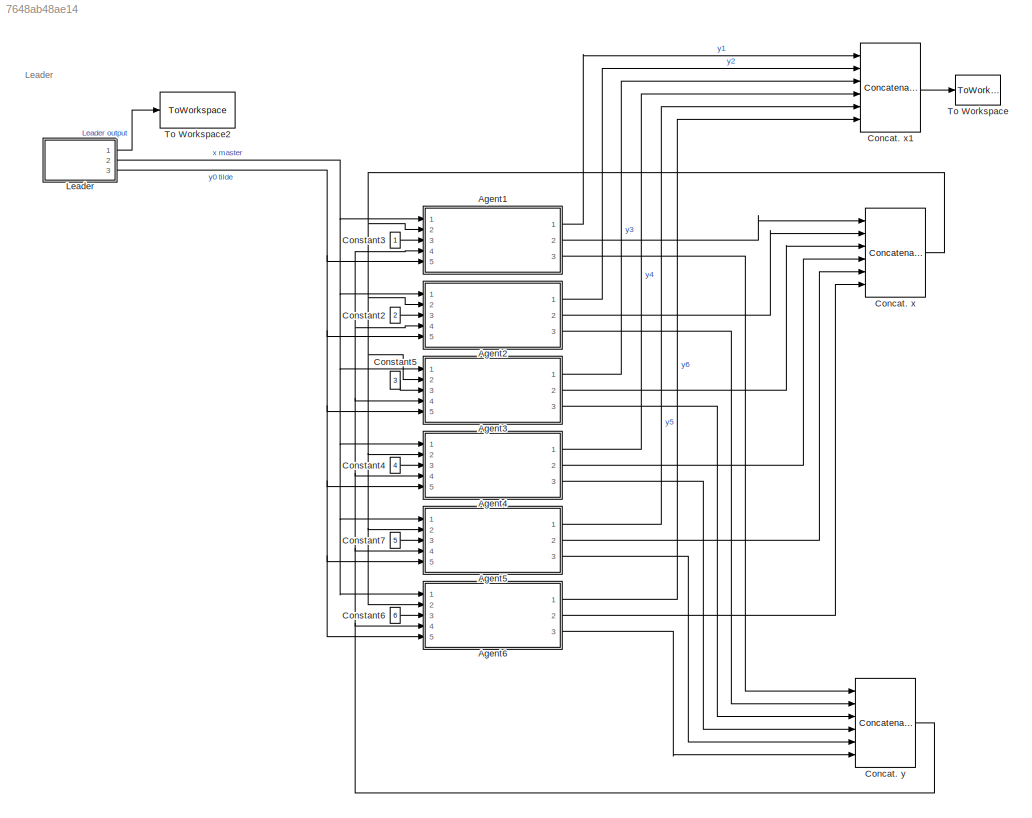
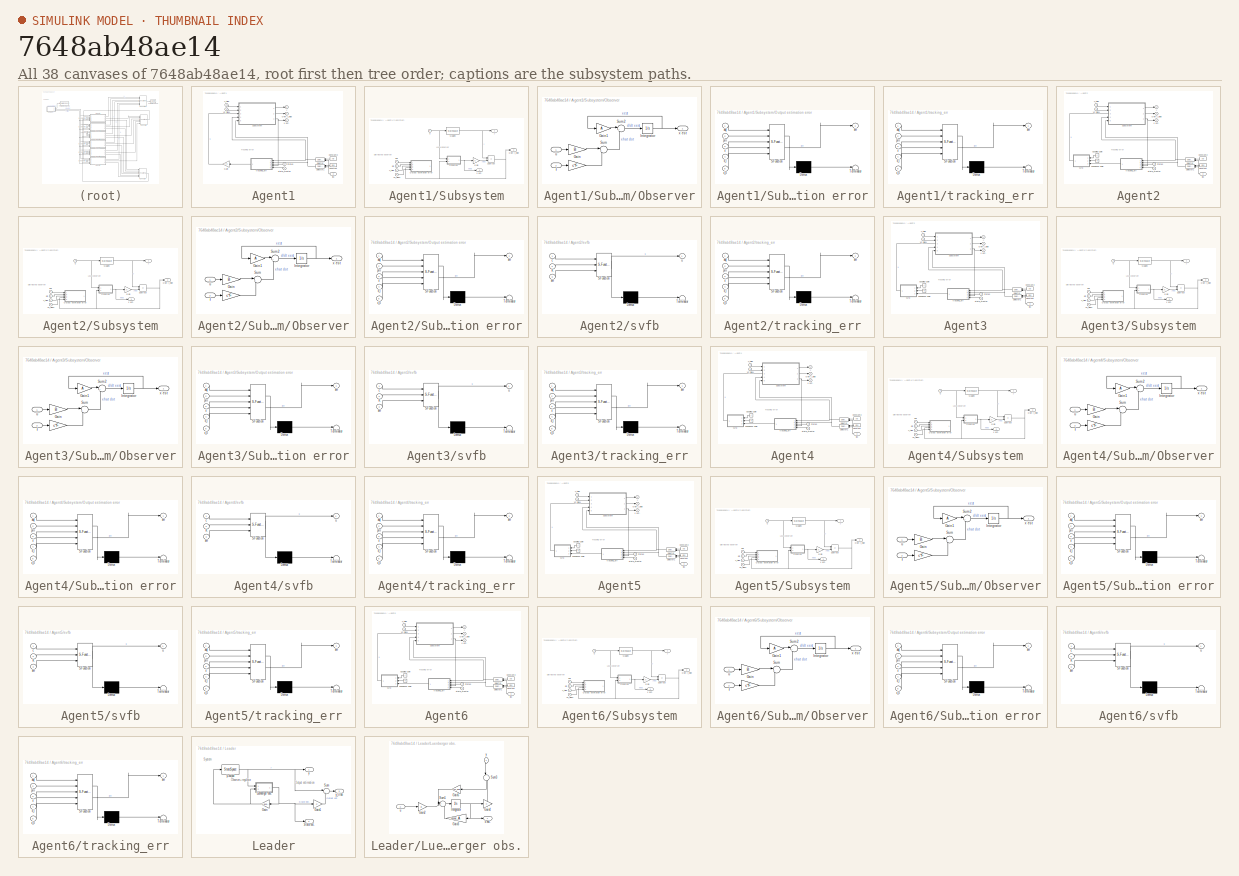
[diagram: thumbnail index - all 38 canvases of the model, root first then tree order]
MODEL slx_7648ab48ae14
KIND model
CONFIG AbsTol = auto
CONFIG EnableMultiTasking = off
CONFIG FixedStep = auto
CONFIG MaxStep = auto
CONFIG MinStep = auto
CONFIG RelTol = 1e-3
CONFIG SampleTimeConstraint = Unconstrained
CONFIG SolverName = VariableStepAuto
CONFIG StartTime = 0.0
CONFIG StopTime = 20
BLOCK [SubSystem] Agent1
  Ports = [5, 3]
  RequestExecContextInheritance = off
BLOCK [Constant] Agent1/Constant
  NameLocation = top
  Value = pins
BLOCK [Constant] Agent1/Constant2
  NameLocation = top
  Value = Adj
  VectorParams1D = off
BLOCK [Gain] Agent1/Gain
  Gain = c*K
  Multiplication = Matrix(K*u)
  NameLocation = top
BLOCK [Outport] Agent1/Own y_tilde
  NameLocation = right
  Port = 3
  PortDimensions = 1
BLOCK [Selector] Agent1/Selector
  IndexOptions = Select all,Index vector (port)
  Indices = [1 3],1
  InputPortWidth = [6 6]
  NameLocation = top
  NumberOfDimensions = 2
  OutputSizes = 1,1
  Ports = [2, 1]
BLOCK [Selector] Agent1/Selector1
  IndexOptions = Index vector (port)
  Indices = [1 3]
  InputPortWidth = 6
  NameLocation = top
  OutputSizes = 1
  Ports = [2, 1]
BLOCK [Inport] Agent1/State_master
  NameLocation = right
BLOCK [Inport] Agent1/States
  NameLocation = right
  Port = 2
BLOCK [SubSystem] Agent1/Subsystem
  Ports = [5, 3]
  RequestExecContextInheritance = off
BLOCK [Gain] Agent1/Subsystem/Gain
  Gain = C
  Multiplication = Matrix(K*u)
BLOCK [StateSpace] Agent1/Subsystem/Maglev
  A = A
  B = B
  C = C
  D = 0
  InitialCondition = 0
  Ports = [1, 1]
BLOCK [SubSystem] Agent1/Subsystem/Observer
  Ports = [2, 1]
  RequestExecContextInheritance = off
BLOCK [Gain] Agent1/Subsystem/Observer/ 
  Gain = c*F
BLOCK [Gain] Agent1/Subsystem/Observer/Gain
  Gain = B
  Multiplication = Matrix(K*u)
BLOCK [Gain] Agent1/Subsystem/Observer/Gain1
  Gain = A
  Multiplication = Matrix(K*u)
BLOCK [Integrator] Agent1/Subsystem/Observer/Integrator
  Ports = [1, 1]
BLOCK [Sum] Agent1/Subsystem/Observer/Sum
  Inputs = |+-
  Ports = [2, 1]
BLOCK [Sum] Agent1/Subsystem/Observer/Sum2
  Inputs = |++
  Ports = [2, 1]
BLOCK [Inport] Agent1/Subsystem/Observer/f
  Port = 2
  PortDimensions = 1
BLOCK [Inport] Agent1/Subsystem/Observer/u
  PortDimensions = 1
BLOCK [Outport] Agent1/Subsystem/Observer/x est
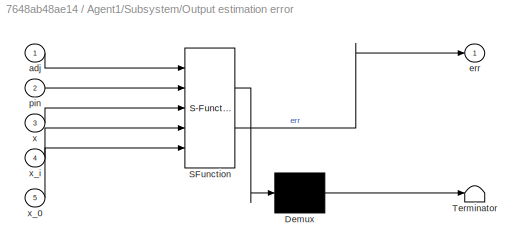
BLOCK [SubSystem] Agent1/Subsystem/Output estimation error
  ErrorFcn = Stateflow.Translate.translate
  PermitHierarchicalResolution = ExplicitOnly
  Ports = [5, 1]
  RequestExecContextInheritance = off
  SFBlockType = MATLAB Function
  TreatAsAtomicUnit = on
BLOCK [Demux] Agent1/Subsystem/Output estimation error/ Demux 
  Outputs = 1
  Ports = [1, 1]
BLOCK [S-Function] Agent1/Subsystem/Output estimation error/ SFunction 
  EnableBusSupport = on
  FunctionName = sf_sfun
  PortCounts = [5 2]
  Ports = [5, 2]
  SFcnIsStateOwnerBlock = off
  SFunctionDeploymentMode = off
  Tag = Stateflow S-Function 1
BLOCK [Terminator] Agent1/Subsystem/Output estimation error/ Terminator 
BLOCK [Inport] Agent1/Subsystem/Output estimation error/adj
BLOCK [Outport] Agent1/Subsystem/Output estimation error/err
BLOCK [Inport] Agent1/Subsystem/Output estimation error/pin
  Port = 2
BLOCK [Inport] Agent1/Subsystem/Output estimation error/x
  Port = 3
BLOCK [Inport] Agent1/Subsystem/Output estimation error/x_0
  Port = 5
BLOCK [Inport] Agent1/Subsystem/Output estimation error/x_i
  Port = 4
BLOCK [Outport] Agent1/Subsystem/Own y_tilde
  NameLocation = right
  Port = 2
  PortDimensions = 1
BLOCK [Sum] Agent1/Subsystem/Subtract
  IconShape = rectangular
  Inputs = +-
  Ports = [2, 1]
BLOCK [Inport] Agent1/Subsystem/Y0_tilde1
  NameLocation = left
  Port = 2
BLOCK [Inport] Agent1/Subsystem/Y_tilde
  NameLocation = left
BLOCK [Inport] Agent1/Subsystem/adj
  NameLocation = left
  Port = 4
BLOCK [Inport] Agent1/Subsystem/pin
  NameLocation = left
  Port = 5
BLOCK [Inport] Agent1/Subsystem/u
  NameLocation = top
  Port = 3
BLOCK [Outport] Agent1/Subsystem/x est.
  NameLocation = right
  Port = 3
  PortDimensions = 2
BLOCK [Outport] Agent1/Subsystem/y
  NameLocation = right
  PortDimensions = 1
BLOCK [Inport] Agent1/Y0_tilde1
  NameLocation = left
  Port = 5
BLOCK [Inport] Agent1/Y_tilde
  NameLocation = left
  Port = 4
BLOCK [Inport] Agent1/idx
  NameLocation = top
  Port = 3
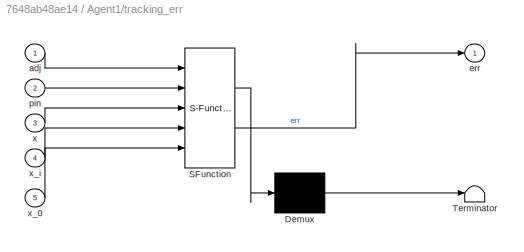
BLOCK [SubSystem] Agent1/tracking_err
  ErrorFcn = Stateflow.Translate.translate
  NameLocation = top
  PermitHierarchicalResolution = ExplicitOnly
  Ports = [5, 1]
  RequestExecContextInheritance = off
  SFBlockType = MATLAB Function
  TreatAsAtomicUnit = on
BLOCK [Demux] Agent1/tracking_err/ Demux 
  Outputs = 1
  Ports = [1, 1]
BLOCK [S-Function] Agent1/tracking_err/ SFunction 
  EnableBusSupport = on
  FunctionName = sf_sfun
  PortCounts = [5 2]
  Ports = [5, 2]
  SFcnIsStateOwnerBlock = off
  SFunctionDeploymentMode = off
  Tag = Stateflow S-Function 5
BLOCK [Terminator] Agent1/tracking_err/ Terminator 
BLOCK [Inport] Agent1/tracking_err/adj
BLOCK [Outport] Agent1/tracking_err/err
BLOCK [Inport] Agent1/tracking_err/pin
  Port = 2
BLOCK [Inport] Agent1/tracking_err/x
  Port = 3
BLOCK [Inport] Agent1/tracking_err/x_0
  Port = 5
BLOCK [Inport] Agent1/tracking_err/x_i
  Port = 4
BLOCK [Outport] Agent1/x est.
  NameLocation = right
  Port = 2
  PortDimensions = 2
BLOCK [Outport] Agent1/y
  NameLocation = right
  PortDimensions = 1
BLOCK [SubSystem] Agent2
  Ports = [5, 3]
  RequestExecContextInheritance = off
BLOCK [Constant] Agent2/Constant
  NameLocation = top
  Value = pins
BLOCK [Constant] Agent2/Constant2
  NameLocation = top
  Value = Adj
  VectorParams1D = off
BLOCK [Constant] Agent2/Coupling gain
  NameLocation = right
  Value = c
BLOCK [Constant] Agent2/Feedback gain
  NameLocation = right
  Value = K
  VectorParams1D = off
BLOCK [Outport] Agent2/Own y_tilde
  NameLocation = right
  Port = 3
  PortDimensions = 1
BLOCK [Selector] Agent2/Selector
  IndexOptions = Select all,Index vector (port)
  Indices = [1 3],1
  InputPortWidth = [6 6]
  NameLocation = top
  NumberOfDimensions = 2
  OutputSizes = 1,1
  Ports = [2, 1]
BLOCK [Selector] Agent2/Selector1
  IndexOptions = Index vector (port)
  Indices = [1 3]
  InputPortWidth = 6
  NameLocation = top
  OutputSizes = 1
  Ports = [2, 1]
BLOCK [Inport] Agent2/State_master
  NameLocation = right
BLOCK [Inport] Agent2/States
  NameLocation = right
  Port = 2
BLOCK [SubSystem] Agent2/Subsystem
  Ports = [5, 3]
  RequestExecContextInheritance = off
BLOCK [Gain] Agent2/Subsystem/Gain
  Gain = C
  Multiplication = Matrix(K*u)
BLOCK [StateSpace] Agent2/Subsystem/Maglev
  A = A
  B = B
  C = C
  D = 0
  InitialCondition = 0
  Ports = [1, 1]
BLOCK [SubSystem] Agent2/Subsystem/Observer
  Ports = [2, 1]
  RequestExecContextInheritance = off
BLOCK [Gain] Agent2/Subsystem/Observer/ 
  Gain = c*F
BLOCK [Gain] Agent2/Subsystem/Observer/Gain
  Gain = B
  Multiplication = Matrix(K*u)
BLOCK [Gain] Agent2/Subsystem/Observer/Gain1
  Gain = A
  Multiplication = Matrix(K*u)
BLOCK [Integrator] Agent2/Subsystem/Observer/Integrator
  Ports = [1, 1]
BLOCK [Sum] Agent2/Subsystem/Observer/Sum
  Inputs = |+-
  Ports = [2, 1]
BLOCK [Sum] Agent2/Subsystem/Observer/Sum2
  Inputs = |++
  Ports = [2, 1]
BLOCK [Inport] Agent2/Subsystem/Observer/f
  Port = 2
  PortDimensions = 1
BLOCK [Inport] Agent2/Subsystem/Observer/u
  PortDimensions = 1
BLOCK [Outport] Agent2/Subsystem/Observer/x est
BLOCK [SubSystem] Agent2/Subsystem/Output estimation error
  ErrorFcn = Stateflow.Translate.translate
  PermitHierarchicalResolution = ExplicitOnly
  Ports = [5, 1]
  RequestExecContextInheritance = off
  SFBlockType = MATLAB Function
  TreatAsAtomicUnit = on
BLOCK [Demux] Agent2/Subsystem/Output estimation error/ Demux 
  Outputs = 1
  Ports = [1, 1]
BLOCK [S-Function] Agent2/Subsystem/Output estimation error/ SFunction 
  EnableBusSupport = on
  FunctionName = sf_sfun
  PortCounts = [5 2]
  Ports = [5, 2]
  SFcnIsStateOwnerBlock = off
  SFunctionDeploymentMode = off
  Tag = Stateflow S-Function 3
BLOCK [Terminator] Agent2/Subsystem/Output estimation error/ Terminator 
BLOCK [Inport] Agent2/Subsystem/Output estimation error/adj
BLOCK [Outport] Agent2/Subsystem/Output estimation error/err
BLOCK [Inport] Agent2/Subsystem/Output estimation error/pin
  Port = 2
BLOCK [Inport] Agent2/Subsystem/Output estimation error/x
  Port = 3
BLOCK [Inport] Agent2/Subsystem/Output estimation error/x_0
  Port = 5
BLOCK [Inport] Agent2/Subsystem/Output estimation error/x_i
  Port = 4
BLOCK [Outport] Agent2/Subsystem/Own y_tilde
  NameLocation = right
  Port = 2
  PortDimensions = 1
BLOCK [Sum] Agent2/Subsystem/Subtract
  IconShape = rectangular
  Inputs = +-
  Ports = [2, 1]
BLOCK [Inport] Agent2/Subsystem/Y0_tilde1
  NameLocation = left
  Port = 2
BLOCK [Inport] Agent2/Subsystem/Y_tilde
  NameLocation = left
BLOCK [Inport] Agent2/Subsystem/adj
  NameLocation = left
  Port = 4
BLOCK [Inport] Agent2/Subsystem/pin
  NameLocation = left
  Port = 5
BLOCK [Inport] Agent2/Subsystem/u
  NameLocation = top
  Port = 3
BLOCK [Outport] Agent2/Subsystem/x est.
  NameLocation = right
  Port = 3
  PortDimensions = 2
BLOCK [Outport] Agent2/Subsystem/y
  NameLocation = right
  PortDimensions = 1
BLOCK [Inport] Agent2/Y0_tilde1
  NameLocation = left
  Port = 5
BLOCK [Inport] Agent2/Y_tilde
  NameLocation = left
  Port = 4
BLOCK [Inport] Agent2/idx
  NameLocation = top
  Port = 3
BLOCK [SubSystem] Agent2/svfb
  ErrorFcn = Stateflow.Translate.translate
  NameLocation = top
  PermitHierarchicalResolution = ExplicitOnly
  Ports = [3, 1]
  RequestExecContextInheritance = off
  SFBlockType = MATLAB Function
  TreatAsAtomicUnit = on
BLOCK [Demux] Agent2/svfb/ Demux 
  Outputs = 1
  Ports = [1, 1]
BLOCK [S-Function] Agent2/svfb/ SFunction 
  EnableBusSupport = on
  FunctionName = sf_sfun
  PortCounts = [3 2]
  Ports = [3, 2]
  SFcnIsStateOwnerBlock = off
  SFunctionDeploymentMode = off
  Tag = Stateflow S-Function 4
BLOCK [Terminator] Agent2/svfb/ Terminator 
BLOCK [Inport] Agent2/svfb/K
  Port = 2
BLOCK [Inport] Agent2/svfb/c
BLOCK [Inport] Agent2/svfb/err
  Port = 3
BLOCK [Outport] Agent2/svfb/u
BLOCK [SubSystem] Agent2/tracking_err
  ErrorFcn = Stateflow.Translate.translate
  NameLocation = top
  PermitHierarchicalResolution = ExplicitOnly
  Ports = [5, 1]
  RequestExecContextInheritance = off
  SFBlockType = MATLAB Function
  TreatAsAtomicUnit = on
BLOCK [Demux] Agent2/tracking_err/ Demux 
  Outputs = 1
  Ports = [1, 1]
BLOCK [S-Function] Agent2/tracking_err/ SFunction 
  EnableBusSupport = on
  FunctionName = sf_sfun
  PortCounts = [5 2]
  Ports = [5, 2]
  SFcnIsStateOwnerBlock = off
  SFunctionDeploymentMode = off
  Tag = Stateflow S-Function 6
BLOCK [Terminator] Agent2/tracking_err/ Terminator 
BLOCK [Inport] Agent2/tracking_err/adj
BLOCK [Outport] Agent2/tracking_err/err
BLOCK [Inport] Agent2/tracking_err/pin
  Port = 2
BLOCK [Inport] Agent2/tracking_err/x
  Port = 3
BLOCK [Inport] Agent2/tracking_err/x_0
  Port = 5
BLOCK [Inport] Agent2/tracking_err/x_i
  Port = 4
BLOCK [Outport] Agent2/x est.
  NameLocation = right
  Port = 2
  PortDimensions = 2
BLOCK [Outport] Agent2/y
  NameLocation = right
  PortDimensions = 1
BLOCK [SubSystem] Agent3
  Ports = [5, 3]
  RequestExecContextInheritance = off
BLOCK [Constant] Agent3/Constant
  NameLocation = top
  Value = pins
BLOCK [Constant] Agent3/Constant2
  NameLocation = top
  Value = Adj
  VectorParams1D = off
BLOCK [Constant] Agent3/Coupling gain
  NameLocation = right
  Value = c
BLOCK [Constant] Agent3/Feedback gain
  NameLocation = right
  Value = K
  VectorParams1D = off
BLOCK [Outport] Agent3/Own y_tilde
  NameLocation = right
  Port = 3
  PortDimensions = 1
BLOCK [Selector] Agent3/Selector
  IndexOptions = Select all,Index vector (port)
  Indices = [1 3],1
  InputPortWidth = [6 6]
  NameLocation = top
  NumberOfDimensions = 2
  OutputSizes = 1,1
  Ports = [2, 1]
BLOCK [Selector] Agent3/Selector1
  IndexOptions = Index vector (port)
  Indices = [1 3]
  InputPortWidth = 6
  NameLocation = top
  OutputSizes = 1
  Ports = [2, 1]
BLOCK [Inport] Agent3/State_master
  NameLocation = right
BLOCK [Inport] Agent3/States
  NameLocation = right
  Port = 2
BLOCK [SubSystem] Agent3/Subsystem
  Ports = [5, 3]
  RequestExecContextInheritance = off
BLOCK [Gain] Agent3/Subsystem/Gain
  Gain = C
  Multiplication = Matrix(K*u)
BLOCK [StateSpace] Agent3/Subsystem/Maglev
  A = A
  B = B
  C = C
  D = 0
  InitialCondition = 0
  Ports = [1, 1]
BLOCK [SubSystem] Agent3/Subsystem/Observer
  Ports = [2, 1]
  RequestExecContextInheritance = off
BLOCK [Gain] Agent3/Subsystem/Observer/ 
  Gain = c*F
BLOCK [Gain] Agent3/Subsystem/Observer/Gain
  Gain = B
  Multiplication = Matrix(K*u)
BLOCK [Gain] Agent3/Subsystem/Observer/Gain1
  Gain = A
  Multiplication = Matrix(K*u)
BLOCK [Integrator] Agent3/Subsystem/Observer/Integrator
  Ports = [1, 1]
BLOCK [Sum] Agent3/Subsystem/Observer/Sum
  Inputs = |+-
  Ports = [2, 1]
BLOCK [Sum] Agent3/Subsystem/Observer/Sum2
  Inputs = |++
  Ports = [2, 1]
BLOCK [Inport] Agent3/Subsystem/Observer/f
  Port = 2
  PortDimensions = 1
BLOCK [Inport] Agent3/Subsystem/Observer/u
  PortDimensions = 1
BLOCK [Outport] Agent3/Subsystem/Observer/x est
BLOCK [SubSystem] Agent3/Subsystem/Output estimation error
  ErrorFcn = Stateflow.Translate.translate
  PermitHierarchicalResolution = ExplicitOnly
  Ports = [5, 1]
  RequestExecContextInheritance = off
  SFBlockType = MATLAB Function
  TreatAsAtomicUnit = on
BLOCK [Demux] Agent3/Subsystem/Output estimation error/ Demux 
  Outputs = 1
  Ports = [1, 1]
BLOCK [S-Function] Agent3/Subsystem/Output estimation error/ SFunction 
  EnableBusSupport = on
  FunctionName = sf_sfun
  PortCounts = [5 2]
  Ports = [5, 2]
  SFcnIsStateOwnerBlock = off
  SFunctionDeploymentMode = off
  Tag = Stateflow S-Function 2
BLOCK [Terminator] Agent3/Subsystem/Output estimation error/ Terminator 
BLOCK [Inport] Agent3/Subsystem/Output estimation error/adj
BLOCK [Outport] Agent3/Subsystem/Output estimation error/err
BLOCK [Inport] Agent3/Subsystem/Output estimation error/pin
  Port = 2
BLOCK [Inport] Agent3/Subsystem/Output estimation error/x
  Port = 3
BLOCK [Inport] Agent3/Subsystem/Output estimation error/x_0
  Port = 5
BLOCK [Inport] Agent3/Subsystem/Output estimation error/x_i
  Port = 4
BLOCK [Outport] Agent3/Subsystem/Own y_tilde
  NameLocation = right
  Port = 2
  PortDimensions = 1
BLOCK [Sum] Agent3/Subsystem/Subtract
  IconShape = rectangular
  Inputs = +-
  Ports = [2, 1]
BLOCK [Inport] Agent3/Subsystem/Y0_tilde1
  NameLocation = left
  Port = 2
BLOCK [Inport] Agent3/Subsystem/Y_tilde
  NameLocation = left
BLOCK [Inport] Agent3/Subsystem/adj
  NameLocation = left
  Port = 4
BLOCK [Inport] Agent3/Subsystem/pin
  NameLocation = left
  Port = 5
BLOCK [Inport] Agent3/Subsystem/u
  NameLocation = top
  Port = 3
BLOCK [Outport] Agent3/Subsystem/x est.
  NameLocation = right
  Port = 3
  PortDimensions = 2
BLOCK [Outport] Agent3/Subsystem/y
  NameLocation = right
  PortDimensions = 1
BLOCK [Inport] Agent3/Y0_tilde1
  NameLocation = left
  Port = 5
BLOCK [Inport] Agent3/Y_tilde
  NameLocation = left
  Port = 4
BLOCK [Inport] Agent3/idx
  NameLocation = top
  Port = 3
BLOCK [SubSystem] Agent3/svfb
  ErrorFcn = Stateflow.Translate.translate
  NameLocation = top
  PermitHierarchicalResolution = ExplicitOnly
  Ports = [3, 1]
  RequestExecContextInheritance = off
  SFBlockType = MATLAB Function
  TreatAsAtomicUnit = on
BLOCK [Demux] Agent3/svfb/ Demux 
  Outputs = 1
  Ports = [1, 1]
BLOCK [S-Function] Agent3/svfb/ SFunction 
  EnableBusSupport = on
  FunctionName = sf_sfun
  PortCounts = [3 2]
  Ports = [3, 2]
  SFcnIsStateOwnerBlock = off
  SFunctionDeploymentMode = off
  Tag = Stateflow S-Function 7
BLOCK [Terminator] Agent3/svfb/ Terminator 
BLOCK [Inport] Agent3/svfb/K
  Port = 2
BLOCK [Inport] Agent3/svfb/c
BLOCK [Inport] Agent3/svfb/err
  Port = 3
BLOCK [Outport] Agent3/svfb/u
BLOCK [SubSystem] Agent3/tracking_err
  ErrorFcn = Stateflow.Translate.translate
  NameLocation = top
  PermitHierarchicalResolution = ExplicitOnly
  Ports = [5, 1]
  RequestExecContextInheritance = off
  SFBlockType = MATLAB Function
  TreatAsAtomicUnit = on
BLOCK [Demux] Agent3/tracking_err/ Demux 
  Outputs = 1
  Ports = [1, 1]
BLOCK [S-Function] Agent3/tracking_err/ SFunction 
  EnableBusSupport = on
  FunctionName = sf_sfun
  PortCounts = [5 2]
  Ports = [5, 2]
  SFcnIsStateOwnerBlock = off
  SFunctionDeploymentMode = off
  Tag = Stateflow S-Function 8
BLOCK [Terminator] Agent3/tracking_err/ Terminator 
BLOCK [Inport] Agent3/tracking_err/adj
BLOCK [Outport] Agent3/tracking_err/err
BLOCK [Inport] Agent3/tracking_err/pin
  Port = 2
BLOCK [Inport] Agent3/tracking_err/x
  Port = 3
BLOCK [Inport] Agent3/tracking_err/x_0
  Port = 5
BLOCK [Inport] Agent3/tracking_err/x_i
  Port = 4
BLOCK [Outport] Agent3/x est.
  NameLocation = right
  Port = 2
  PortDimensions = 2
BLOCK [Outport] Agent3/y
  NameLocation = right
  PortDimensions = 1
BLOCK [SubSystem] Agent4
  Ports = [5, 3]
  RequestExecContextInheritance = off
BLOCK [Constant] Agent4/Constant
  NameLocation = top
  Value = pins
BLOCK [Constant] Agent4/Constant2
  NameLocation = top
  Value = Adj
  VectorParams1D = off
BLOCK [Constant] Agent4/Coupling gain
  NameLocation = right
  Value = c
BLOCK [Constant] Agent4/Feedback gain
  NameLocation = right
  Value = K
  VectorParams1D = off
BLOCK [Outport] Agent4/Own y_tilde
  NameLocation = right
  Port = 3
  PortDimensions = 1
BLOCK [Selector] Agent4/Selector
  IndexOptions = Select all,Index vector (port)
  Indices = [1 3],1
  InputPortWidth = [6 6]
  NameLocation = top
  NumberOfDimensions = 2
  OutputSizes = 1,1
  Ports = [2, 1]
BLOCK [Selector] Agent4/Selector1
  IndexOptions = Index vector (port)
  Indices = [1 3]
  InputPortWidth = 6
  NameLocation = top
  OutputSizes = 1
  Ports = [2, 1]
BLOCK [Inport] Agent4/State_master
  NameLocation = right
BLOCK [Inport] Agent4/States
  NameLocation = right
  Port = 2
BLOCK [SubSystem] Agent4/Subsystem
  Ports = [5, 3]
  RequestExecContextInheritance = off
BLOCK [Gain] Agent4/Subsystem/Gain
  Gain = C
  Multiplication = Matrix(K*u)
BLOCK [StateSpace] Agent4/Subsystem/Maglev
  A = A
  B = B
  C = C
  D = 0
  InitialCondition = 0
  Ports = [1, 1]
BLOCK [SubSystem] Agent4/Subsystem/Observer
  Ports = [2, 1]
  RequestExecContextInheritance = off
BLOCK [Gain] Agent4/Subsystem/Observer/ 
  Gain = c*F
BLOCK [Gain] Agent4/Subsystem/Observer/Gain
  Gain = B
  Multiplication = Matrix(K*u)
BLOCK [Gain] Agent4/Subsystem/Observer/Gain1
  Gain = A
  Multiplication = Matrix(K*u)
BLOCK [Integrator] Agent4/Subsystem/Observer/Integrator
  Ports = [1, 1]
BLOCK [Sum] Agent4/Subsystem/Observer/Sum
  Inputs = |+-
  Ports = [2, 1]
BLOCK [Sum] Agent4/Subsystem/Observer/Sum2
  Inputs = |++
  Ports = [2, 1]
BLOCK [Inport] Agent4/Subsystem/Observer/f
  Port = 2
  PortDimensions = 1
BLOCK [Inport] Agent4/Subsystem/Observer/u
  PortDimensions = 1
BLOCK [Outport] Agent4/Subsystem/Observer/x est
BLOCK [SubSystem] Agent4/Subsystem/Output estimation error
  ErrorFcn = Stateflow.Translate.translate
  PermitHierarchicalResolution = ExplicitOnly
  Ports = [5, 1]
  RequestExecContextInheritance = off
  SFBlockType = MATLAB Function
  TreatAsAtomicUnit = on
BLOCK [Demux] Agent4/Subsystem/Output estimation error/ Demux 
  Outputs = 1
  Ports = [1, 1]
BLOCK [S-Function] Agent4/Subsystem/Output estimation error/ SFunction 
  EnableBusSupport = on
  FunctionName = sf_sfun
  PortCounts = [5 2]
  Ports = [5, 2]
  SFcnIsStateOwnerBlock = off
  SFunctionDeploymentMode = off
  Tag = Stateflow S-Function 9
BLOCK [Terminator] Agent4/Subsystem/Output estimation error/ Terminator 
BLOCK [Inport] Agent4/Subsystem/Output estimation error/adj
BLOCK [Outport] Agent4/Subsystem/Output estimation error/err
BLOCK [Inport] Agent4/Subsystem/Output estimation error/pin
  Port = 2
BLOCK [Inport] Agent4/Subsystem/Output estimation error/x
  Port = 3
BLOCK [Inport] Agent4/Subsystem/Output estimation error/x_0
  Port = 5
BLOCK [Inport] Agent4/Subsystem/Output estimation error/x_i
  Port = 4
BLOCK [Outport] Agent4/Subsystem/Own y_tilde
  NameLocation = right
  Port = 2
  PortDimensions = 1
BLOCK [Sum] Agent4/Subsystem/Subtract
  IconShape = rectangular
  Inputs = +-
  Ports = [2, 1]
BLOCK [Inport] Agent4/Subsystem/Y0_tilde1
  NameLocation = left
  Port = 2
BLOCK [Inport] Agent4/Subsystem/Y_tilde
  NameLocation = left
BLOCK [Inport] Agent4/Subsystem/adj
  NameLocation = left
  Port = 4
BLOCK [Inport] Agent4/Subsystem/pin
  NameLocation = left
  Port = 5
BLOCK [Inport] Agent4/Subsystem/u
  NameLocation = top
  Port = 3
BLOCK [Outport] Agent4/Subsystem/x est.
  NameLocation = right
  Port = 3
  PortDimensions = 2
BLOCK [Outport] Agent4/Subsystem/y
  NameLocation = right
  PortDimensions = 1
BLOCK [Inport] Agent4/Y0_tilde1
  NameLocation = left
  Port = 5
BLOCK [Inport] Agent4/Y_tilde
  NameLocation = left
  Port = 4
BLOCK [Inport] Agent4/idx
  NameLocation = top
  Port = 3
BLOCK [SubSystem] Agent4/svfb
  ErrorFcn = Stateflow.Translate.translate
  NameLocation = top
  PermitHierarchicalResolution = ExplicitOnly
  Ports = [3, 1]
  RequestExecContextInheritance = off
  SFBlockType = MATLAB Function
  TreatAsAtomicUnit = on
BLOCK [Demux] Agent4/svfb/ Demux 
  Outputs = 1
  Ports = [1, 1]
BLOCK [S-Function] Agent4/svfb/ SFunction 
  EnableBusSupport = on
  FunctionName = sf_sfun
  PortCounts = [3 2]
  Ports = [3, 2]
  SFcnIsStateOwnerBlock = off
  SFunctionDeploymentMode = off
  Tag = Stateflow S-Function 10
BLOCK [Terminator] Agent4/svfb/ Terminator 
BLOCK [Inport] Agent4/svfb/K
  Port = 2
BLOCK [Inport] Agent4/svfb/c
BLOCK [Inport] Agent4/svfb/err
  Port = 3
BLOCK [Outport] Agent4/svfb/u
BLOCK [SubSystem] Agent4/tracking_err
  ErrorFcn = Stateflow.Translate.translate
  NameLocation = top
  PermitHierarchicalResolution = ExplicitOnly
  Ports = [5, 1]
  RequestExecContextInheritance = off
  SFBlockType = MATLAB Function
  TreatAsAtomicUnit = on
BLOCK [Demux] Agent4/tracking_err/ Demux 
  Outputs = 1
  Ports = [1, 1]
BLOCK [S-Function] Agent4/tracking_err/ SFunction 
  EnableBusSupport = on
  FunctionName = sf_sfun
  PortCounts = [5 2]
  Ports = [5, 2]
  SFcnIsStateOwnerBlock = off
  SFunctionDeploymentMode = off
  Tag = Stateflow S-Function 11
BLOCK [Terminator] Agent4/tracking_err/ Terminator 
BLOCK [Inport] Agent4/tracking_err/adj
BLOCK [Outport] Agent4/tracking_err/err
BLOCK [Inport] Agent4/tracking_err/pin
  Port = 2
BLOCK [Inport] Agent4/tracking_err/x
  Port = 3
BLOCK [Inport] Agent4/tracking_err/x_0
  Port = 5
BLOCK [Inport] Agent4/tracking_err/x_i
  Port = 4
BLOCK [Outport] Agent4/x est.
  NameLocation = right
  Port = 2
  PortDimensions = 2
BLOCK [Outport] Agent4/y
  NameLocation = right
  PortDimensions = 1
BLOCK [SubSystem] Agent5
  Ports = [5, 3]
  RequestExecContextInheritance = off
BLOCK [Constant] Agent5/Constant
  NameLocation = top
  Value = pins
BLOCK [Constant] Agent5/Constant2
  NameLocation = top
  Value = Adj
  VectorParams1D = off
BLOCK [Constant] Agent5/Coupling gain
  NameLocation = right
  Value = c
BLOCK [Constant] Agent5/Feedback gain
  NameLocation = right
  Value = K
  VectorParams1D = off
BLOCK [Outport] Agent5/Own y_tilde
  NameLocation = right
  Port = 3
  PortDimensions = 1
BLOCK [Selector] Agent5/Selector
  IndexOptions = Select all,Index vector (port)
  Indices = [1 3],1
  InputPortWidth = [6 6]
  NameLocation = top
  NumberOfDimensions = 2
  OutputSizes = 1,1
  Ports = [2, 1]
BLOCK [Selector] Agent5/Selector1
  IndexOptions = Index vector (port)
  Indices = [1 3]
  InputPortWidth = 6
  NameLocation = top
  OutputSizes = 1
  Ports = [2, 1]
BLOCK [Inport] Agent5/State_master
  NameLocation = right
BLOCK [Inport] Agent5/States
  NameLocation = right
  Port = 2
BLOCK [SubSystem] Agent5/Subsystem
  Ports = [5, 3]
  RequestExecContextInheritance = off
BLOCK [Gain] Agent5/Subsystem/Gain
  Gain = C
  Multiplication = Matrix(K*u)
BLOCK [StateSpace] Agent5/Subsystem/Maglev
  A = A
  B = B
  C = C
  D = 0
  InitialCondition = 0
  Ports = [1, 1]
BLOCK [SubSystem] Agent5/Subsystem/Observer
  Ports = [2, 1]
  RequestExecContextInheritance = off
BLOCK [Gain] Agent5/Subsystem/Observer/ 
  Gain = c*F
BLOCK [Gain] Agent5/Subsystem/Observer/Gain
  Gain = B
  Multiplication = Matrix(K*u)
BLOCK [Gain] Agent5/Subsystem/Observer/Gain1
  Gain = A
  Multiplication = Matrix(K*u)
BLOCK [Integrator] Agent5/Subsystem/Observer/Integrator
  Ports = [1, 1]
BLOCK [Sum] Agent5/Subsystem/Observer/Sum
  Inputs = |+-
  Ports = [2, 1]
BLOCK [Sum] Agent5/Subsystem/Observer/Sum2
  Inputs = |++
  Ports = [2, 1]
BLOCK [Inport] Agent5/Subsystem/Observer/f
  Port = 2
  PortDimensions = 1
BLOCK [Inport] Agent5/Subsystem/Observer/u
  PortDimensions = 1
BLOCK [Outport] Agent5/Subsystem/Observer/x est
BLOCK [SubSystem] Agent5/Subsystem/Output estimation error
  ErrorFcn = Stateflow.Translate.translate
  PermitHierarchicalResolution = ExplicitOnly
  Ports = [5, 1]
  RequestExecContextInheritance = off
  SFBlockType = MATLAB Function
  TreatAsAtomicUnit = on
BLOCK [Demux] Agent5/Subsystem/Output estimation error/ Demux 
  Outputs = 1
  Ports = [1, 1]
BLOCK [S-Function] Agent5/Subsystem/Output estimation error/ SFunction 
  EnableBusSupport = on
  FunctionName = sf_sfun
  PortCounts = [5 2]
  Ports = [5, 2]
  SFcnIsStateOwnerBlock = off
  SFunctionDeploymentMode = off
  Tag = Stateflow S-Function 12
BLOCK [Terminator] Agent5/Subsystem/Output estimation error/ Terminator 
BLOCK [Inport] Agent5/Subsystem/Output estimation error/adj
BLOCK [Outport] Agent5/Subsystem/Output estimation error/err
BLOCK [Inport] Agent5/Subsystem/Output estimation error/pin
  Port = 2
BLOCK [Inport] Agent5/Subsystem/Output estimation error/x
  Port = 3
BLOCK [Inport] Agent5/Subsystem/Output estimation error/x_0
  Port = 5
BLOCK [Inport] Agent5/Subsystem/Output estimation error/x_i
  Port = 4
BLOCK [Outport] Agent5/Subsystem/Own y_tilde
  NameLocation = right
  Port = 2
  PortDimensions = 1
BLOCK [Sum] Agent5/Subsystem/Subtract
  IconShape = rectangular
  Inputs = +-
  Ports = [2, 1]
BLOCK [Inport] Agent5/Subsystem/Y0_tilde1
  NameLocation = left
  Port = 2
BLOCK [Inport] Agent5/Subsystem/Y_tilde
  NameLocation = left
BLOCK [Inport] Agent5/Subsystem/adj
  NameLocation = left
  Port = 4
BLOCK [Inport] Agent5/Subsystem/pin
  NameLocation = left
  Port = 5
BLOCK [Inport] Agent5/Subsystem/u
  NameLocation = top
  Port = 3
BLOCK [Outport] Agent5/Subsystem/x est.
  NameLocation = right
  Port = 3
  PortDimensions = 2
BLOCK [Outport] Agent5/Subsystem/y
  NameLocation = right
  PortDimensions = 1
BLOCK [Inport] Agent5/Y0_tilde1
  NameLocation = left
  Port = 5
BLOCK [Inport] Agent5/Y_tilde
  NameLocation = left
  Port = 4
BLOCK [Inport] Agent5/idx
  NameLocation = top
  Port = 3
BLOCK [SubSystem] Agent5/svfb
  ErrorFcn = Stateflow.Translate.translate
  NameLocation = top
  PermitHierarchicalResolution = ExplicitOnly
  Ports = [3, 1]
  RequestExecContextInheritance = off
  SFBlockType = MATLAB Function
  TreatAsAtomicUnit = on
BLOCK [Demux] Agent5/svfb/ Demux 
  Outputs = 1
  Ports = [1, 1]
BLOCK [S-Function] Agent5/svfb/ SFunction 
  EnableBusSupport = on
  FunctionName = sf_sfun
  PortCounts = [3 2]
  Ports = [3, 2]
  SFcnIsStateOwnerBlock = off
  SFunctionDeploymentMode = off
  Tag = Stateflow S-Function 13
BLOCK [Terminator] Agent5/svfb/ Terminator 
BLOCK [Inport] Agent5/svfb/K
  Port = 2
BLOCK [Inport] Agent5/svfb/c
BLOCK [Inport] Agent5/svfb/err
  Port = 3
BLOCK [Outport] Agent5/svfb/u
BLOCK [SubSystem] Agent5/tracking_err
  ErrorFcn = Stateflow.Translate.translate
  NameLocation = top
  PermitHierarchicalResolution = ExplicitOnly
  Ports = [5, 1]
  RequestExecContextInheritance = off
  SFBlockType = MATLAB Function
  TreatAsAtomicUnit = on
BLOCK [Demux] Agent5/tracking_err/ Demux 
  Outputs = 1
  Ports = [1, 1]
BLOCK [S-Function] Agent5/tracking_err/ SFunction 
  EnableBusSupport = on
  FunctionName = sf_sfun
  PortCounts = [5 2]
  Ports = [5, 2]
  SFcnIsStateOwnerBlock = off
  SFunctionDeploymentMode = off
  Tag = Stateflow S-Function 14
BLOCK [Terminator] Agent5/tracking_err/ Terminator 
BLOCK [Inport] Agent5/tracking_err/adj
BLOCK [Outport] Agent5/tracking_err/err
BLOCK [Inport] Agent5/tracking_err/pin
  Port = 2
BLOCK [Inport] Agent5/tracking_err/x
  Port = 3
BLOCK [Inport] Agent5/tracking_err/x_0
  Port = 5
BLOCK [Inport] Agent5/tracking_err/x_i
  Port = 4
BLOCK [Outport] Agent5/x est.
  NameLocation = right
  Port = 2
  PortDimensions = 2
BLOCK [Outport] Agent5/y
  NameLocation = right
  PortDimensions = 1
BLOCK [SubSystem] Agent6
  Ports = [5, 3]
  RequestExecContextInheritance = off
BLOCK [Constant] Agent6/Constant
  NameLocation = top
  Value = pins
BLOCK [Constant] Agent6/Constant2
  NameLocation = top
  Value = Adj
  VectorParams1D = off
BLOCK [Constant] Agent6/Coupling gain
  NameLocation = right
  Value = c
BLOCK [Constant] Agent6/Feedback gain
  NameLocation = right
  Value = K
  VectorParams1D = off
BLOCK [Outport] Agent6/Own y_tilde
  NameLocation = right
  Port = 3
  PortDimensions = 1
BLOCK [Selector] Agent6/Selector
  IndexOptions = Select all,Index vector (port)
  Indices = [1 3],1
  InputPortWidth = [6 6]
  NameLocation = top
  NumberOfDimensions = 2
  OutputSizes = 1,1
  Ports = [2, 1]
BLOCK [Selector] Agent6/Selector1
  IndexOptions = Index vector (port)
  Indices = [1 3]
  InputPortWidth = 6
  NameLocation = top
  OutputSizes = 1
  Ports = [2, 1]
BLOCK [Inport] Agent6/State_master
  NameLocation = right
BLOCK [Inport] Agent6/States
  NameLocation = right
  Port = 2
BLOCK [SubSystem] Agent6/Subsystem
  Ports = [5, 3]
  RequestExecContextInheritance = off
BLOCK [Gain] Agent6/Subsystem/Gain
  Gain = C
  Multiplication = Matrix(K*u)
BLOCK [StateSpace] Agent6/Subsystem/Maglev
  A = A
  B = B
  C = C
  D = 0
  InitialCondition = 0
  Ports = [1, 1]
BLOCK [SubSystem] Agent6/Subsystem/Observer
  Ports = [2, 1]
  RequestExecContextInheritance = off
BLOCK [Gain] Agent6/Subsystem/Observer/ 
  Gain = c*F
BLOCK [Gain] Agent6/Subsystem/Observer/Gain
  Gain = B
  Multiplication = Matrix(K*u)
BLOCK [Gain] Agent6/Subsystem/Observer/Gain1
  Gain = A
  Multiplication = Matrix(K*u)
BLOCK [Integrator] Agent6/Subsystem/Observer/Integrator
  Ports = [1, 1]
BLOCK [Sum] Agent6/Subsystem/Observer/Sum
  Inputs = |+-
  Ports = [2, 1]
BLOCK [Sum] Agent6/Subsystem/Observer/Sum2
  Inputs = |++
  Ports = [2, 1]
BLOCK [Inport] Agent6/Subsystem/Observer/f
  Port = 2
  PortDimensions = 1
BLOCK [Inport] Agent6/Subsystem/Observer/u
  PortDimensions = 1
BLOCK [Outport] Agent6/Subsystem/Observer/x est
BLOCK [SubSystem] Agent6/Subsystem/Output estimation error
  ErrorFcn = Stateflow.Translate.translate
  PermitHierarchicalResolution = ExplicitOnly
  Ports = [5, 1]
  RequestExecContextInheritance = off
  SFBlockType = MATLAB Function
  TreatAsAtomicUnit = on
BLOCK [Demux] Agent6/Subsystem/Output estimation error/ Demux 
  Outputs = 1
  Ports = [1, 1]
BLOCK [S-Function] Agent6/Subsystem/Output estimation error/ SFunction 
  EnableBusSupport = on
  FunctionName = sf_sfun
  PortCounts = [5 2]
  Ports = [5, 2]
  SFcnIsStateOwnerBlock = off
  SFunctionDeploymentMode = off
  Tag = Stateflow S-Function 15
BLOCK [Terminator] Agent6/Subsystem/Output estimation error/ Terminator 
BLOCK [Inport] Agent6/Subsystem/Output estimation error/adj
BLOCK [Outport] Agent6/Subsystem/Output estimation error/err
BLOCK [Inport] Agent6/Subsystem/Output estimation error/pin
  Port = 2
BLOCK [Inport] Agent6/Subsystem/Output estimation error/x
  Port = 3
BLOCK [Inport] Agent6/Subsystem/Output estimation error/x_0
  Port = 5
BLOCK [Inport] Agent6/Subsystem/Output estimation error/x_i
  Port = 4
BLOCK [Outport] Agent6/Subsystem/Own y_tilde
  NameLocation = right
  Port = 2
  PortDimensions = 1
BLOCK [Sum] Agent6/Subsystem/Subtract
  IconShape = rectangular
  Inputs = +-
  Ports = [2, 1]
BLOCK [Inport] Agent6/Subsystem/Y0_tilde1
  NameLocation = left
  Port = 2
BLOCK [Inport] Agent6/Subsystem/Y_tilde
  NameLocation = left
BLOCK [Inport] Agent6/Subsystem/adj
  NameLocation = left
  Port = 4
BLOCK [Inport] Agent6/Subsystem/pin
  NameLocation = left
  Port = 5
BLOCK [Inport] Agent6/Subsystem/u
  NameLocation = top
  Port = 3
BLOCK [Outport] Agent6/Subsystem/x est.
  NameLocation = right
  Port = 3
  PortDimensions = 2
BLOCK [Outport] Agent6/Subsystem/y
  NameLocation = right
  PortDimensions = 1
BLOCK [Inport] Agent6/Y0_tilde1
  NameLocation = left
  Port = 5
BLOCK [Inport] Agent6/Y_tilde
  NameLocation = left
  Port = 4
BLOCK [Inport] Agent6/idx
  NameLocation = top
  Port = 3
BLOCK [SubSystem] Agent6/svfb
  ErrorFcn = Stateflow.Translate.translate
  NameLocation = top
  PermitHierarchicalResolution = ExplicitOnly
  Ports = [3, 1]
  RequestExecContextInheritance = off
  SFBlockType = MATLAB Function
  TreatAsAtomicUnit = on
BLOCK [Demux] Agent6/svfb/ Demux 
  Outputs = 1
  Ports = [1, 1]
BLOCK [S-Function] Agent6/svfb/ SFunction 
  EnableBusSupport = on
  FunctionName = sf_sfun
  PortCounts = [3 2]
  Ports = [3, 2]
  SFcnIsStateOwnerBlock = off
  SFunctionDeploymentMode = off
  Tag = Stateflow S-Function 16
BLOCK [Terminator] Agent6/svfb/ Terminator 
BLOCK [Inport] Agent6/svfb/K
  Port = 2
BLOCK [Inport] Agent6/svfb/c
BLOCK [Inport] Agent6/svfb/err
  Port = 3
BLOCK [Outport] Agent6/svfb/u
BLOCK [SubSystem] Agent6/tracking_err
  ErrorFcn = Stateflow.Translate.translate
  NameLocation = top
  PermitHierarchicalResolution = ExplicitOnly
  Ports = [5, 1]
  RequestExecContextInheritance = off
  SFBlockType = MATLAB Function
  TreatAsAtomicUnit = on
BLOCK [Demux] Agent6/tracking_err/ Demux 
  Outputs = 1
  Ports = [1, 1]
BLOCK [S-Function] Agent6/tracking_err/ SFunction 
  EnableBusSupport = on
  FunctionName = sf_sfun
  PortCounts = [5 2]
  Ports = [5, 2]
  SFcnIsStateOwnerBlock = off
  SFunctionDeploymentMode = off
  Tag = Stateflow S-Function 17
BLOCK [Terminator] Agent6/tracking_err/ Terminator 
BLOCK [Inport] Agent6/tracking_err/adj
BLOCK [Outport] Agent6/tracking_err/err
BLOCK [Inport] Agent6/tracking_err/pin
  Port = 2
BLOCK [Inport] Agent6/tracking_err/x
  Port = 3
BLOCK [Inport] Agent6/tracking_err/x_0
  Port = 5
BLOCK [Inport] Agent6/tracking_err/x_i
  Port = 4
BLOCK [Outport] Agent6/x est.
  NameLocation = right
  Port = 2
  PortDimensions = 2
BLOCK [Outport] Agent6/y
  NameLocation = right
  PortDimensions = 1
BLOCK [Concatenate] Concat. x
  ConcatenateDimension = 2
  Mode = Multidimensional array
  NumInputs = 6
  Ports = [6, 1]
BLOCK [Concatenate] Concat. x1
  ConcatenateDimension = 2
  Mode = Multidimensional array
  NumInputs = 6
  Ports = [6, 1]
BLOCK [Concatenate] Concat. y
  ConcatenateDimension = 2
  Mode = Multidimensional array
  NumInputs = 6
  Ports = [6, 1]
BLOCK [Constant] Constant2
  Value = 2
BLOCK [Constant] Constant3
BLOCK [Constant] Constant4
  Value = 4
BLOCK [Constant] Constant5
  Value = 3
BLOCK [Constant] Constant6
  Value = 6
BLOCK [Constant] Constant7
  Value = 5
BLOCK [SubSystem] Leader
  Ports = [0, 3]
  RequestExecContextInheritance = off
BLOCK [Gain] Leader/Gain
  Gain = -K_leader
  Multiplication = Matrix(K*u)
  NameLocation = top
BLOCK [Gain] Leader/Gain1
  Gain = C
  Multiplication = Matrix(K*u)
BLOCK [SubSystem] Leader/Luenberger obs.
  Ports = [2, 1]
  RequestExecContextInheritance = off
BLOCK [Gain] Leader/Luenberger obs./Gain2
  Gain = B
  Multiplication = Matrix(K*u)
BLOCK [Gain] Leader/Luenberger obs./Gain3
  Gain = raw_A
  Multiplication = Matrix(K*u)
  NameLocation = top
BLOCK [Gain] Leader/Luenberger obs./Gain4
  Gain = C
  Multiplication = Matrix(K*u)
BLOCK [Gain] Leader/Luenberger obs./Gain5
  Gain = Obs_gain
  Multiplication = Matrix(K*u)
  NameLocation = top
BLOCK [Integrator] Leader/Luenberger obs./Integrator
  InitialCondition = initial_x
  Ports = [1, 1]
BLOCK [Sum] Leader/Luenberger obs./Sum1
  Inputs = |+++
  Ports = [3, 1]
BLOCK [Sum] Leader/Luenberger obs./Sum3
  Inputs = |+-
  NameLocation = left
  Ports = [2, 1]
BLOCK [Inport] Leader/Luenberger obs./u
  Port = 2
BLOCK [Outport] Leader/Luenberger obs./x est.
BLOCK [Inport] Leader/Luenberger obs./y
  NameLocation = left
BLOCK [Outport] Leader/State est.
  Port = 2
BLOCK [Sum] Leader/Sum
  Inputs = |+-
  Ports = [2, 1]
BLOCK [Outport] Leader/y
BLOCK [StateSpace] Leader/y-output
  A = raw_A
  B = B
  C = C
  D = D
  InitialCondition = initial_x
  Ports = [1, 1]
BLOCK [Outport] Leader/y_tilde
  Port = 3
BLOCK [ToWorkspace] To Workspace
  FixptAsFi = on
  MaxDataPoints = inf
  Ports = [1]
  SampleTime = -1
  SaveFormat = Timeseries
  VariableName = y
BLOCK [ToWorkspace] To Workspace2
  FixptAsFi = on
  MaxDataPoints = inf
  Ports = [1]
  SampleTime = -1
  SaveFormat = Timeseries
  VariableName = y_leader
ANNOTATION (root): Leader
ANNOTATION Agent1: Tracking error
ANNOTATION Agent1/Subsystem: Distributed observer
ANNOTATION Agent1/Subsystem: Local observer
ANNOTATION Agent2: Tracking error
ANNOTATION Agent2/Subsystem: Distributed observer
ANNOTATION Agent2/Subsystem: Local observer
ANNOTATION Agent3: Tracking error
ANNOTATION Agent3/Subsystem: Distributed observer
ANNOTATION Agent3/Subsystem: Local observer
ANNOTATION Agent4: Tracking error
ANNOTATION Agent4/Subsystem: Distributed observer
ANNOTATION Agent4/Subsystem: Local observer
ANNOTATION Agent5: Tracking error
ANNOTATION Agent5/Subsystem: Distributed observer
ANNOTATION Agent5/Subsystem: Local observer
ANNOTATION Agent6: Tracking error
ANNOTATION Agent6/Subsystem: Distributed observer
ANNOTATION Agent6/Subsystem: Local observer
ANNOTATION Leader: Observer+regulator
ANNOTATION Leader: Output estimation
ANNOTATION Leader: System
LINE Agent1/Constant2:1 -> Agent1/Selector:1
LINE Agent1/Constant:1 -> Agent1/Selector1:1
LINE Agent1/Gain:1 -> Agent1/Subsystem:3
NET Agent1/Selector1:1 -> Agent1/Subsystem:5, Agent1/tracking_err:2
NET Agent1/Selector:1 -> Agent1/Subsystem:4, Agent1/tracking_err:1
LINE Agent1/State_master:1 -> Agent1/tracking_err:5
LINE Agent1/States:1 -> Agent1/tracking_err:3
LINE Agent1/Subsystem/Gain:1 -> Agent1/Subsystem/Subtract:2
NET Agent1/Subsystem/Maglev:1 -> Agent1/Subsystem/Subtract:1, Agent1/Subsystem/y:1
LINE Agent1/Subsystem/Observer/ :1 -> Agent1/Subsystem/Observer/Sum:2
LINE Agent1/Subsystem/Observer/Gain1:1 -> Agent1/Subsystem/Observer/Sum2:1
LINE Agent1/Subsystem/Observer/Gain:1 -> Agent1/Subsystem/Observer/Sum:1
NET Agent1/Subsystem/Observer/Integrator:1 -> Agent1/Subsystem/Observer/Gain1:1, Agent1/Subsystem/Observer/x est:1
LINE Agent1/Subsystem/Observer/Sum2:1 -> Agent1/Subsystem/Observer/Integrator:1
LINE Agent1/Subsystem/Observer/Sum:1 -> Agent1/Subsystem/Observer/Sum2:2
LINE Agent1/Subsystem/Observer/f:1 -> Agent1/Subsystem/Observer/ :1
LINE Agent1/Subsystem/Observer/u:1 -> Agent1/Subsystem/Observer/Gain:1
NET Agent1/Subsystem/Observer:1 -> Agent1/Subsystem/Gain:1, Agent1/Subsystem/x est.:1
NET Agent1/Subsystem/Subtract:1 -> Agent1/Subsystem/Observer:2, Agent1/Subsystem/Output estimation error:4, Agent1/Subsystem/Own y_tilde:1
LINE Agent1/Subsystem/Y0_tilde1:1 -> Agent1/Subsystem/Output estimation error:5
LINE Agent1/Subsystem/Y_tilde:1 -> Agent1/Subsystem/Output estimation error:3
LINE Agent1/Subsystem/adj:1 -> Agent1/Subsystem/Output estimation error:1
LINE Agent1/Subsystem/pin:1 -> Agent1/Subsystem/Output estimation error:2
NET Agent1/Subsystem/u:1 -> Agent1/Subsystem/Maglev:1, Agent1/Subsystem/Observer:1
LINE Agent1/Subsystem:1 -> Agent1/y:1
LINE Agent1/Subsystem:2 -> Agent1/Own y_tilde:1
NET Agent1/Subsystem:3 -> Agent1/tracking_err:4, Agent1/x est.:1
LINE Agent1/Y0_tilde1:1 -> Agent1/Subsystem:2
LINE Agent1/Y_tilde:1 -> Agent1/Subsystem:1
NET Agent1/idx:1 -> Agent1/Selector1:2, Agent1/Selector:2
LINE Agent1/tracking_err:1 -> Agent1/Gain:1
LINE Agent1:1 -> Concat. x1:1
LINE Agent1:2 -> Concat. x:1
LINE Agent1:3 -> Concat. y:1
LINE Agent2/Constant2:1 -> Agent2/Selector:1
LINE Agent2/Constant:1 -> Agent2/Selector1:1
LINE Agent2/Coupling gain:1 -> Agent2/svfb:1
LINE Agent2/Feedback gain:1 -> Agent2/svfb:2
NET Agent2/Selector1:1 -> Agent2/Subsystem:5, Agent2/tracking_err:2
NET Agent2/Selector:1 -> Agent2/Subsystem:4, Agent2/tracking_err:1
LINE Agent2/State_master:1 -> Agent2/tracking_err:5
LINE Agent2/States:1 -> Agent2/tracking_err:3
LINE Agent2/Subsystem/Gain:1 -> Agent2/Subsystem/Subtract:2
NET Agent2/Subsystem/Maglev:1 -> Agent2/Subsystem/Subtract:1, Agent2/Subsystem/y:1
LINE Agent2/Subsystem/Observer/ :1 -> Agent2/Subsystem/Observer/Sum:2
LINE Agent2/Subsystem/Observer/Gain1:1 -> Agent2/Subsystem/Observer/Sum2:1
LINE Agent2/Subsystem/Observer/Gain:1 -> Agent2/Subsystem/Observer/Sum:1
NET Agent2/Subsystem/Observer/Integrator:1 -> Agent2/Subsystem/Observer/Gain1:1, Agent2/Subsystem/Observer/x est:1
LINE Agent2/Subsystem/Observer/Sum2:1 -> Agent2/Subsystem/Observer/Integrator:1
LINE Agent2/Subsystem/Observer/Sum:1 -> Agent2/Subsystem/Observer/Sum2:2
LINE Agent2/Subsystem/Observer/f:1 -> Agent2/Subsystem/Observer/ :1
LINE Agent2/Subsystem/Observer/u:1 -> Agent2/Subsystem/Observer/Gain:1
NET Agent2/Subsystem/Observer:1 -> Agent2/Subsystem/Gain:1, Agent2/Subsystem/x est.:1
NET Agent2/Subsystem/Subtract:1 -> Agent2/Subsystem/Observer:2, Agent2/Subsystem/Output estimation error:4, Agent2/Subsystem/Own y_tilde:1
LINE Agent2/Subsystem/Y0_tilde1:1 -> Agent2/Subsystem/Output estimation error:5
LINE Agent2/Subsystem/Y_tilde:1 -> Agent2/Subsystem/Output estimation error:3
LINE Agent2/Subsystem/adj:1 -> Agent2/Subsystem/Output estimation error:1
LINE Agent2/Subsystem/pin:1 -> Agent2/Subsystem/Output estimation error:2
NET Agent2/Subsystem/u:1 -> Agent2/Subsystem/Maglev:1, Agent2/Subsystem/Observer:1
LINE Agent2/Subsystem:1 -> Agent2/y:1
LINE Agent2/Subsystem:2 -> Agent2/Own y_tilde:1
NET Agent2/Subsystem:3 -> Agent2/tracking_err:4, Agent2/x est.:1
LINE Agent2/Y0_tilde1:1 -> Agent2/Subsystem:2
LINE Agent2/Y_tilde:1 -> Agent2/Subsystem:1
NET Agent2/idx:1 -> Agent2/Selector1:2, Agent2/Selector:2
LINE Agent2/svfb:1 -> Agent2/Subsystem:3
LINE Agent2/tracking_err:1 -> Agent2/svfb:3
LINE Agent2:1 -> Concat. x1:2
LINE Agent2:2 -> Concat. x:2
LINE Agent2:3 -> Concat. y:2
LINE Agent3/Constant2:1 -> Agent3/Selector:1
LINE Agent3/Constant:1 -> Agent3/Selector1:1
LINE Agent3/Coupling gain:1 -> Agent3/svfb:1
LINE Agent3/Feedback gain:1 -> Agent3/svfb:2
NET Agent3/Selector1:1 -> Agent3/Subsystem:5, Agent3/tracking_err:2
NET Agent3/Selector:1 -> Agent3/Subsystem:4, Agent3/tracking_err:1
LINE Agent3/State_master:1 -> Agent3/tracking_err:5
LINE Agent3/States:1 -> Agent3/tracking_err:3
LINE Agent3/Subsystem/Gain:1 -> Agent3/Subsystem/Subtract:2
NET Agent3/Subsystem/Maglev:1 -> Agent3/Subsystem/Subtract:1, Agent3/Subsystem/y:1
LINE Agent3/Subsystem/Observer/ :1 -> Agent3/Subsystem/Observer/Sum:2
LINE Agent3/Subsystem/Observer/Gain1:1 -> Agent3/Subsystem/Observer/Sum2:1
LINE Agent3/Subsystem/Observer/Gain:1 -> Agent3/Subsystem/Observer/Sum:1
NET Agent3/Subsystem/Observer/Integrator:1 -> Agent3/Subsystem/Observer/Gain1:1, Agent3/Subsystem/Observer/x est:1
LINE Agent3/Subsystem/Observer/Sum2:1 -> Agent3/Subsystem/Observer/Integrator:1
LINE Agent3/Subsystem/Observer/Sum:1 -> Agent3/Subsystem/Observer/Sum2:2
LINE Agent3/Subsystem/Observer/f:1 -> Agent3/Subsystem/Observer/ :1
LINE Agent3/Subsystem/Observer/u:1 -> Agent3/Subsystem/Observer/Gain:1
NET Agent3/Subsystem/Observer:1 -> Agent3/Subsystem/Gain:1, Agent3/Subsystem/x est.:1
NET Agent3/Subsystem/Subtract:1 -> Agent3/Subsystem/Observer:2, Agent3/Subsystem/Output estimation error:4, Agent3/Subsystem/Own y_tilde:1
LINE Agent3/Subsystem/Y0_tilde1:1 -> Agent3/Subsystem/Output estimation error:5
LINE Agent3/Subsystem/Y_tilde:1 -> Agent3/Subsystem/Output estimation error:3
LINE Agent3/Subsystem/adj:1 -> Agent3/Subsystem/Output estimation error:1
LINE Agent3/Subsystem/pin:1 -> Agent3/Subsystem/Output estimation error:2
NET Agent3/Subsystem/u:1 -> Agent3/Subsystem/Maglev:1, Agent3/Subsystem/Observer:1
LINE Agent3/Subsystem:1 -> Agent3/y:1
LINE Agent3/Subsystem:2 -> Agent3/Own y_tilde:1
NET Agent3/Subsystem:3 -> Agent3/tracking_err:4, Agent3/x est.:1
LINE Agent3/Y0_tilde1:1 -> Agent3/Subsystem:2
LINE Agent3/Y_tilde:1 -> Agent3/Subsystem:1
NET Agent3/idx:1 -> Agent3/Selector1:2, Agent3/Selector:2
LINE Agent3/svfb:1 -> Agent3/Subsystem:3
LINE Agent3/tracking_err:1 -> Agent3/svfb:3
LINE Agent3:1 -> Concat. x1:3
LINE Agent3:2 -> Concat. x:3
LINE Agent3:3 -> Concat. y:3
LINE Agent4/Constant2:1 -> Agent4/Selector:1
LINE Agent4/Constant:1 -> Agent4/Selector1:1
LINE Agent4/Coupling gain:1 -> Agent4/svfb:1
LINE Agent4/Feedback gain:1 -> Agent4/svfb:2
NET Agent4/Selector1:1 -> Agent4/Subsystem:5, Agent4/tracking_err:2
NET Agent4/Selector:1 -> Agent4/Subsystem:4, Agent4/tracking_err:1
LINE Agent4/State_master:1 -> Agent4/tracking_err:5
LINE Agent4/States:1 -> Agent4/tracking_err:3
LINE Agent4/Subsystem/Gain:1 -> Agent4/Subsystem/Subtract:2
NET Agent4/Subsystem/Maglev:1 -> Agent4/Subsystem/Subtract:1, Agent4/Subsystem/y:1
LINE Agent4/Subsystem/Observer/ :1 -> Agent4/Subsystem/Observer/Sum:2
LINE Agent4/Subsystem/Observer/Gain1:1 -> Agent4/Subsystem/Observer/Sum2:1
LINE Agent4/Subsystem/Observer/Gain:1 -> Agent4/Subsystem/Observer/Sum:1
NET Agent4/Subsystem/Observer/Integrator:1 -> Agent4/Subsystem/Observer/Gain1:1, Agent4/Subsystem/Observer/x est:1
LINE Agent4/Subsystem/Observer/Sum2:1 -> Agent4/Subsystem/Observer/Integrator:1
LINE Agent4/Subsystem/Observer/Sum:1 -> Agent4/Subsystem/Observer/Sum2:2
LINE Agent4/Subsystem/Observer/f:1 -> Agent4/Subsystem/Observer/ :1
LINE Agent4/Subsystem/Observer/u:1 -> Agent4/Subsystem/Observer/Gain:1
NET Agent4/Subsystem/Observer:1 -> Agent4/Subsystem/Gain:1, Agent4/Subsystem/x est.:1
NET Agent4/Subsystem/Subtract:1 -> Agent4/Subsystem/Observer:2, Agent4/Subsystem/Output estimation error:4, Agent4/Subsystem/Own y_tilde:1
LINE Agent4/Subsystem/Y0_tilde1:1 -> Agent4/Subsystem/Output estimation error:5
LINE Agent4/Subsystem/Y_tilde:1 -> Agent4/Subsystem/Output estimation error:3
LINE Agent4/Subsystem/adj:1 -> Agent4/Subsystem/Output estimation error:1
LINE Agent4/Subsystem/pin:1 -> Agent4/Subsystem/Output estimation error:2
NET Agent4/Subsystem/u:1 -> Agent4/Subsystem/Maglev:1, Agent4/Subsystem/Observer:1
LINE Agent4/Subsystem:1 -> Agent4/y:1
LINE Agent4/Subsystem:2 -> Agent4/Own y_tilde:1
NET Agent4/Subsystem:3 -> Agent4/tracking_err:4, Agent4/x est.:1
LINE Agent4/Y0_tilde1:1 -> Agent4/Subsystem:2
LINE Agent4/Y_tilde:1 -> Agent4/Subsystem:1
NET Agent4/idx:1 -> Agent4/Selector1:2, Agent4/Selector:2
LINE Agent4/svfb:1 -> Agent4/Subsystem:3
LINE Agent4/tracking_err:1 -> Agent4/svfb:3
LINE Agent4:1 -> Concat. x1:4
LINE Agent4:2 -> Concat. x:4
LINE Agent4:3 -> Concat. y:4
LINE Agent5/Constant2:1 -> Agent5/Selector:1
LINE Agent5/Constant:1 -> Agent5/Selector1:1
LINE Agent5/Coupling gain:1 -> Agent5/svfb:1
LINE Agent5/Feedback gain:1 -> Agent5/svfb:2
NET Agent5/Selector1:1 -> Agent5/Subsystem:5, Agent5/tracking_err:2
NET Agent5/Selector:1 -> Agent5/Subsystem:4, Agent5/tracking_err:1
LINE Agent5/State_master:1 -> Agent5/tracking_err:5
LINE Agent5/States:1 -> Agent5/tracking_err:3
LINE Agent5/Subsystem/Gain:1 -> Agent5/Subsystem/Subtract:2
NET Agent5/Subsystem/Maglev:1 -> Agent5/Subsystem/Subtract:1, Agent5/Subsystem/y:1
LINE Agent5/Subsystem/Observer/ :1 -> Agent5/Subsystem/Observer/Sum:2
LINE Agent5/Subsystem/Observer/Gain1:1 -> Agent5/Subsystem/Observer/Sum2:1
LINE Agent5/Subsystem/Observer/Gain:1 -> Agent5/Subsystem/Observer/Sum:1
NET Agent5/Subsystem/Observer/Integrator:1 -> Agent5/Subsystem/Observer/Gain1:1, Agent5/Subsystem/Observer/x est:1
LINE Agent5/Subsystem/Observer/Sum2:1 -> Agent5/Subsystem/Observer/Integrator:1
LINE Agent5/Subsystem/Observer/Sum:1 -> Agent5/Subsystem/Observer/Sum2:2
LINE Agent5/Subsystem/Observer/f:1 -> Agent5/Subsystem/Observer/ :1
LINE Agent5/Subsystem/Observer/u:1 -> Agent5/Subsystem/Observer/Gain:1
NET Agent5/Subsystem/Observer:1 -> Agent5/Subsystem/Gain:1, Agent5/Subsystem/x est.:1
NET Agent5/Subsystem/Subtract:1 -> Agent5/Subsystem/Observer:2, Agent5/Subsystem/Output estimation error:4, Agent5/Subsystem/Own y_tilde:1
LINE Agent5/Subsystem/Y0_tilde1:1 -> Agent5/Subsystem/Output estimation error:5
LINE Agent5/Subsystem/Y_tilde:1 -> Agent5/Subsystem/Output estimation error:3
LINE Agent5/Subsystem/adj:1 -> Agent5/Subsystem/Output estimation error:1
LINE Agent5/Subsystem/pin:1 -> Agent5/Subsystem/Output estimation error:2
NET Agent5/Subsystem/u:1 -> Agent5/Subsystem/Maglev:1, Agent5/Subsystem/Observer:1
LINE Agent5/Subsystem:1 -> Agent5/y:1
LINE Agent5/Subsystem:2 -> Agent5/Own y_tilde:1
NET Agent5/Subsystem:3 -> Agent5/tracking_err:4, Agent5/x est.:1
LINE Agent5/Y0_tilde1:1 -> Agent5/Subsystem:2
LINE Agent5/Y_tilde:1 -> Agent5/Subsystem:1
NET Agent5/idx:1 -> Agent5/Selector1:2, Agent5/Selector:2
LINE Agent5/svfb:1 -> Agent5/Subsystem:3
LINE Agent5/tracking_err:1 -> Agent5/svfb:3
LINE Agent5:1 -> Concat. x1:5
LINE Agent5:2 -> Concat. x:5
LINE Agent5:3 -> Concat. y:5
LINE Agent6/Constant2:1 -> Agent6/Selector:1
LINE Agent6/Constant:1 -> Agent6/Selector1:1
LINE Agent6/Coupling gain:1 -> Agent6/svfb:1
LINE Agent6/Feedback gain:1 -> Agent6/svfb:2
NET Agent6/Selector1:1 -> Agent6/Subsystem:5, Agent6/tracking_err:2
NET Agent6/Selector:1 -> Agent6/Subsystem:4, Agent6/tracking_err:1
LINE Agent6/State_master:1 -> Agent6/tracking_err:5
LINE Agent6/States:1 -> Agent6/tracking_err:3
LINE Agent6/Subsystem/Gain:1 -> Agent6/Subsystem/Subtract:2
NET Agent6/Subsystem/Maglev:1 -> Agent6/Subsystem/Subtract:1, Agent6/Subsystem/y:1
LINE Agent6/Subsystem/Observer/ :1 -> Agent6/Subsystem/Observer/Sum:2
LINE Agent6/Subsystem/Observer/Gain1:1 -> Agent6/Subsystem/Observer/Sum2:1
LINE Agent6/Subsystem/Observer/Gain:1 -> Agent6/Subsystem/Observer/Sum:1
NET Agent6/Subsystem/Observer/Integrator:1 -> Agent6/Subsystem/Observer/Gain1:1, Agent6/Subsystem/Observer/x est:1
LINE Agent6/Subsystem/Observer/Sum2:1 -> Agent6/Subsystem/Observer/Integrator:1
LINE Agent6/Subsystem/Observer/Sum:1 -> Agent6/Subsystem/Observer/Sum2:2
LINE Agent6/Subsystem/Observer/f:1 -> Agent6/Subsystem/Observer/ :1
LINE Agent6/Subsystem/Observer/u:1 -> Agent6/Subsystem/Observer/Gain:1
NET Agent6/Subsystem/Observer:1 -> Agent6/Subsystem/Gain:1, Agent6/Subsystem/x est.:1
NET Agent6/Subsystem/Subtract:1 -> Agent6/Subsystem/Observer:2, Agent6/Subsystem/Output estimation error:4, Agent6/Subsystem/Own y_tilde:1
LINE Agent6/Subsystem/Y0_tilde1:1 -> Agent6/Subsystem/Output estimation error:5
LINE Agent6/Subsystem/Y_tilde:1 -> Agent6/Subsystem/Output estimation error:3
LINE Agent6/Subsystem/adj:1 -> Agent6/Subsystem/Output estimation error:1
LINE Agent6/Subsystem/pin:1 -> Agent6/Subsystem/Output estimation error:2
NET Agent6/Subsystem/u:1 -> Agent6/Subsystem/Maglev:1, Agent6/Subsystem/Observer:1
LINE Agent6/Subsystem:1 -> Agent6/y:1
LINE Agent6/Subsystem:2 -> Agent6/Own y_tilde:1
NET Agent6/Subsystem:3 -> Agent6/tracking_err:4, Agent6/x est.:1
LINE Agent6/Y0_tilde1:1 -> Agent6/Subsystem:2
LINE Agent6/Y_tilde:1 -> Agent6/Subsystem:1
NET Agent6/idx:1 -> Agent6/Selector1:2, Agent6/Selector:2
LINE Agent6/svfb:1 -> Agent6/Subsystem:3
LINE Agent6/tracking_err:1 -> Agent6/svfb:3
LINE Agent6:1 -> Concat. x1:6
LINE Agent6:2 -> Concat. x:6
LINE Agent6:3 -> Concat. y:6
LINE Concat. x1:1 -> To Workspace:1
NET Concat. x:1 -> Agent1:2, Agent2:2, Agent3:2, Agent4:2, Agent5:2, Agent6:2
NET Concat. y:1 -> Agent1:4, Agent2:4, Agent3:4, Agent4:4, Agent5:4, Agent6:4
LINE Constant2:1 -> Agent2:3
LINE Constant3:1 -> Agent1:3
LINE Constant4:1 -> Agent4:3
LINE Constant5:1 -> Agent3:3
LINE Constant6:1 -> Agent6:3
LINE Constant7:1 -> Agent5:3
LINE Leader/Gain1:1 -> Leader/Sum:2
NET Leader/Gain:1 -> Leader/Luenberger obs.:2, Leader/y-output:1
LINE Leader/Luenberger obs./Gain2:1 -> Leader/Luenberger obs./Sum1:2
LINE Leader/Luenberger obs./Gain3:1 -> Leader/Luenberger obs./Sum1:3
LINE Leader/Luenberger obs./Gain4:1 -> Leader/Luenberger obs./Sum3:2
LINE Leader/Luenberger obs./Gain5:1 -> Leader/Luenberger obs./Sum1:1
NET Leader/Luenberger obs./Integrator:1 -> Leader/Luenberger obs./Gain3:1, Leader/Luenberger obs./Gain4:1, Leader/Luenberger obs./x est.:1
LINE Leader/Luenberger obs./Sum1:1 -> Leader/Luenberger obs./Integrator:1
LINE Leader/Luenberger obs./Sum3:1 -> Leader/Luenberger obs./Gain5:1
LINE Leader/Luenberger obs./u:1 -> Leader/Luenberger obs./Gain2:1
LINE Leader/Luenberger obs./y:1 -> Leader/Luenberger obs./Sum3:1
NET Leader/Luenberger obs.:1 -> Leader/Gain1:1, Leader/Gain:1, Leader/State est.:1
LINE Leader/Sum:1 -> Leader/y_tilde:1
NET Leader/y-output:1 -> Leader/Luenberger obs.:1, Leader/Sum:1, Leader/y:1
LINE Leader:1 -> To Workspace2:1
NET Leader:2 -> Agent1:1, Agent2:1, Agent3:1, Agent4:1, Agent5:1, Agent6:1
NET Leader:3 -> Agent1:5, Agent2:5, Agent3:5, Agent4:5, Agent5:5, Agent6:5
note: NET lines group one-source signal fan-out (src -> all destinations, sorted); 1:1 wires keep LINE
CHART Agent4/svfb states=1 transitions=1
  STATE_LABEL 'eML_blk_kernel()'
  STATE_LABEL "SCRIPT:\nfunction u = svfb(c, K, err)\nu = 0;\nu = u + (c * K * err)';\n"
CHART Agent4/tracking_err states=1 transitions=1
  STATE_LABEL 'eML_blk_kernel()'
  STATE_LABEL 'SCRIPT:\nfunction err = tracking_err(adj, pin, x, x_i, x_0)\nerr = zeros([2 1]);\nerr = err + pin * (x_0 - x_i);\nfor j = 1:6\n    err = err + adj(j) * (x(:, j) - x_i);\nend'
CHART Agent1/Subsystem/Output estimation error states=1 transitions=1
  STATE_LABEL 'eML_blk_kernel()'
  STATE_LABEL 'SCRIPT:\nfunction err = tracking_err(adj, pin, x, x_i, x_0)\nerr = 0;\nerr = err + pin * (x_0 - x_i);\nfor j = 1:6\n    err = err + adj(j) * (x(:, j) - x_i);\nend'
CHART Agent5/Subsystem/Output estimation error states=1 transitions=1
  STATE_LABEL 'eML_blk_kernel()'
  STATE_LABEL 'SCRIPT:\nfunction err = tracking_err(adj, pin, x, x_i, x_0)\nerr = 0;\nerr = err + pin * (x_0 - x_i);\nfor j = 1:6\n    err = err + adj(j) * (x(:, j) - x_i);\nend'
CHART Agent5/svfb states=1 transitions=1
  STATE_LABEL 'eML_blk_kernel()'
  STATE_LABEL "SCRIPT:\nfunction u = svfb(c, K, err)\nu = 0;\nu = u + (c * K * err)';\n"
CHART Agent5/tracking_err states=1 transitions=1
  STATE_LABEL 'eML_blk_kernel()'
  STATE_LABEL 'SCRIPT:\nfunction err = tracking_err(adj, pin, x, x_i, x_0)\nerr = zeros([2 1]);\nerr = err + pin * (x_0 - x_i);\nfor j = 1:6\n    err = err + adj(j) * (x(:, j) - x_i);\nend'
CHART Agent6/Subsystem/Output estimation error states=1 transitions=1
  STATE_LABEL 'eML_blk_kernel()'
  STATE_LABEL 'SCRIPT:\nfunction err = tracking_err(adj, pin, x, x_i, x_0)\nerr = 0;\nerr = err + pin * (x_0 - x_i);\nfor j = 1:6\n    err = err + adj(j) * (x(:, j) - x_i);\nend'
CHART Agent6/svfb states=1 transitions=1
  STATE_LABEL 'eML_blk_kernel()'
  STATE_LABEL "SCRIPT:\nfunction u = svfb(c, K, err)\nu = 0;\nu = u + (c * K * err)';\n"
CHART Agent6/tracking_err states=1 transitions=1
  STATE_LABEL 'eML_blk_kernel()'
  STATE_LABEL 'SCRIPT:\nfunction err = tracking_err(adj, pin, x, x_i, x_0)\nerr = zeros([2 1]);\nerr = err + pin * (x_0 - x_i);\nfor j = 1:6\n    err = err + adj(j) * (x(:, j) - x_i);\nend'
CHART Agent3/Subsystem/Output estimation error states=1 transitions=1
  STATE_LABEL 'eML_blk_kernel()'
  STATE_LABEL 'SCRIPT:\nfunction err = tracking_err(adj, pin, x, x_i, x_0)\nerr = 0;\nerr = err + pin * (x_0 - x_i);\nfor j = 1:6\n    err = err + adj(j) * (x(:, j) - x_i);\nend'
CHART Agent2/Subsystem/Output estimation error states=1 transitions=1
  STATE_LABEL 'eML_blk_kernel()'
  STATE_LABEL 'SCRIPT:\nfunction err = tracking_err(adj, pin, x, x_i, x_0)\nerr = 0;\nerr = err + pin * (x_0 - x_i);\nfor j = 1:6\n    err = err + adj(j) * (x(:, j) - x_i);\nend'
CHART Agent2/svfb states=1 transitions=1
  STATE_LABEL 'eML_blk_kernel()'
  STATE_LABEL "SCRIPT:\nfunction u = svfb(c, K, err)\nu = 0;\nu = u + (c * K * err)';\n"
CHART Agent1/tracking_err states=1 transitions=1
  STATE_LABEL 'eML_blk_kernel()'
  STATE_LABEL 'SCRIPT:\nfunction err = tracking_err(adj, pin, x, x_i, x_0)\nerr = zeros([2 1]);\nerr = err + pin * (x_0 - x_i);\nfor j = 1:6\n    err = err + adj(j) * (x(:, j) - x_i);\nend'
CHART Agent2/tracking_err states=1 transitions=1
  STATE_LABEL 'eML_blk_kernel()'
  STATE_LABEL 'SCRIPT:\nfunction err = tracking_err(adj, pin, x, x_i, x_0)\nerr = zeros([2 1]);\nerr = err + pin * (x_0 - x_i);\nfor j = 1:6\n    err = err + adj(j) * (x(:, j) - x_i);\nend'
CHART Agent3/svfb states=1 transitions=1
  STATE_LABEL 'eML_blk_kernel()'
  STATE_LABEL "SCRIPT:\nfunction u = svfb(c, K, err)\nu = 0;\nu = u + (c * K * err)';\n"
CHART Agent3/tracking_err states=1 transitions=1
  STATE_LABEL 'eML_blk_kernel()'
  STATE_LABEL 'SCRIPT:\nfunction err = tracking_err(adj, pin, x, x_i, x_0)\nerr = zeros([2 1]);\nerr = err + pin * (x_0 - x_i);\nfor j = 1:6\n    err = err + adj(j) * (x(:, j) - x_i);\nend'
CHART Agent4/Subsystem/Output estimation error states=1 transitions=1
  STATE_LABEL 'eML_blk_kernel()'
  STATE_LABEL 'SCRIPT:\nfunction err = tracking_err(adj, pin, x, x_i, x_0)\nerr = 0;\nerr = err + pin * (x_0 - x_i);\nfor j = 1:6\n    err = err + adj(j) * (x(:, j) - x_i);\nend'
CHART  states=0 transitions=0
CHART  states=0 transitions=0
CHART  states=0 transitions=0
CHART  states=0 transitions=0
CHART  states=0 transitions=0
CHART  states=0 transitions=0
CHART  states=0 transitions=0
CHART  states=0 transitions=0
CHART  states=0 transitions=0
CHART  states=0 transitions=0
CHART  states=0 transitions=0
CHART  states=0 transitions=0
CHART  states=0 transitions=0
CHART  states=0 transitions=0
CHART  states=0 transitions=0
CHART  states=0 transitions=0
CHART  states=0 transitions=0
